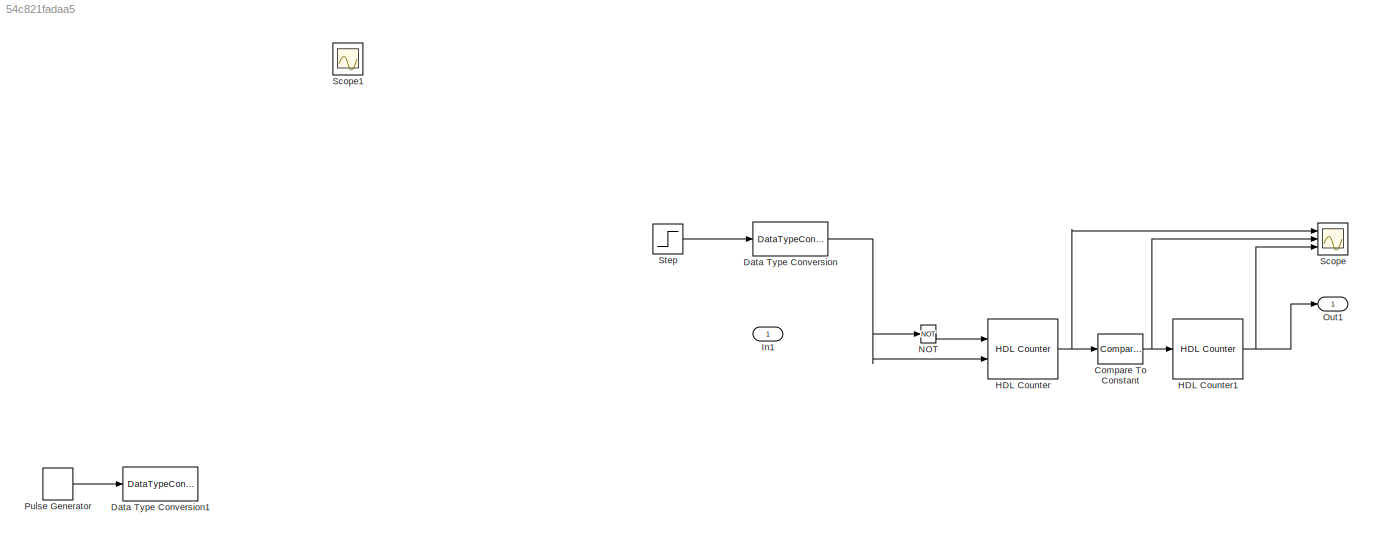
MODEL slx_54c821fadaa5
KIND model
CONFIG AbsTol = auto
CONFIG FixedStep = 1
CONFIG MaxStep = auto
CONFIG MinStep = auto
CONFIG RelTol = 1e-3
CONFIG SampleTimeConstraint = Unconstrained
CONFIG Solver = FixedStepDiscrete
CONFIG SolverMode = Auto
CONFIG SolverName = FixedStepDiscrete
CONFIG StartTime = 0.0
CONFIG StopTime = 500000
BLOCK [Reference] Compare To Constant  REF=simulink/Logic and Bit
Operations/Compare
To Constant
  Ports = [1, 1]
  SourceBlock = simulink/Logic and Bit\nOperations/Compare\nTo Constant
  SourceType = Compare To Constant
BLOCK [DataTypeConversion] Data Type Conversion
  OutDataTypeStr = boolean
  RndMeth = Floor
  SaturateOnIntegerOverflow = off
BLOCK [DataTypeConversion] Data Type Conversion1
  OutDataTypeStr = boolean
  RndMeth = Floor
  SaturateOnIntegerOverflow = off
BLOCK [Reference] HDL Counter  REF=hdlsllib/HDL Operations/HDL Counter
  Ports = [2, 1]
  SourceBlock = hdlsllib/HDL Operations/HDL Counter
  SourceType = HDL Counter
BLOCK [Reference] HDL Counter1  REF=hdlsllib/HDL Operations/HDL Counter
  Ports = [1, 1]
  SourceBlock = hdlsllib/HDL Operations/HDL Counter
  SourceType = HDL Counter
BLOCK [Inport] In1
  IconDisplay = Port number
BLOCK [Logic] NOT
  AllPortsSameDT = off
  IconShape = distinctive
  Operator = NOT
  OutDataTypeStr = boolean
  Ports = [1, 1]
BLOCK [Outport] Out1
  IconDisplay = Port number
BLOCK [DiscretePulseGenerator] Pulse Generator
  Period = 25000
  Ports = [0, 1]
  PulseWidth = 5
BLOCK [Scope] Scope
  NumInputPorts = 3
  Ports = [3]
  ScopeSpecificationString = Simulink.scopes.TimeScopeBlockCfg('CurrentConfiguration', extmgr.ConfigurationSet(extmgr.Configuration('Core','General UI',true),extmgr.Configuration('Core','Source UI',true),extmgr.Configuration('Sources','WiredSimulink',true),extmgr.Configuration('Visuals','Time Domain',true,'SerializedDisplays',{struct('MinYLimReal','-0.625','MaxYLimReal','5.625','YLabelReal','','MinYLimMag','0.00000','MaxYLimM...<+1461ch>
BLOCK [Scope] Scope1
  Ports = [1]
  ScopeSpecificationString = Simulink.scopes.TimeScopeBlockCfg('CurrentConfiguration', extmgr.ConfigurationSet(extmgr.Configuration('Core','General UI',true),extmgr.Configuration('Core','Source UI',true),extmgr.Configuration('Sources','WiredSimulink',true,'DataLoggingVariableName','ScopeData1'),extmgr.Configuration('Visuals','Time Domain',true,'SerializedDisplays',{struct('MinYLimReal','-0.125','MaxYLimReal','1.125','YLabelRe...<+1461ch>
BLOCK [Step] Step
  SampleTime = 1
  Time = 25000
NET Compare To Constant:1 -> HDL Counter1:1, Scope:2
NET Data Type Conversion:1 -> HDL Counter:2, NOT:1
NET HDL Counter1:1 -> Out1:1, Scope:3
NET HDL Counter:1 -> Compare To Constant:1, Scope:1
LINE NOT:1 -> HDL Counter:1
LINE Pulse Generator:1 -> Data Type Conversion1:1
LINE Step:1 -> Data Type Conversion:1
note: NET lines group one-source signal fan-out (src -> all destinations, sorted); 1:1 wires keep LINE
